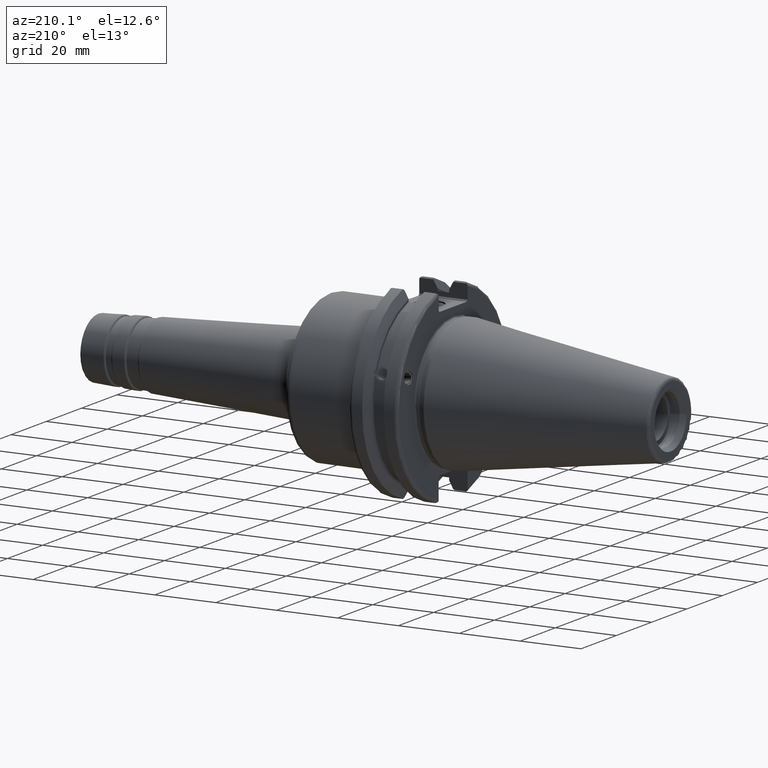
[diagram: clean part render]
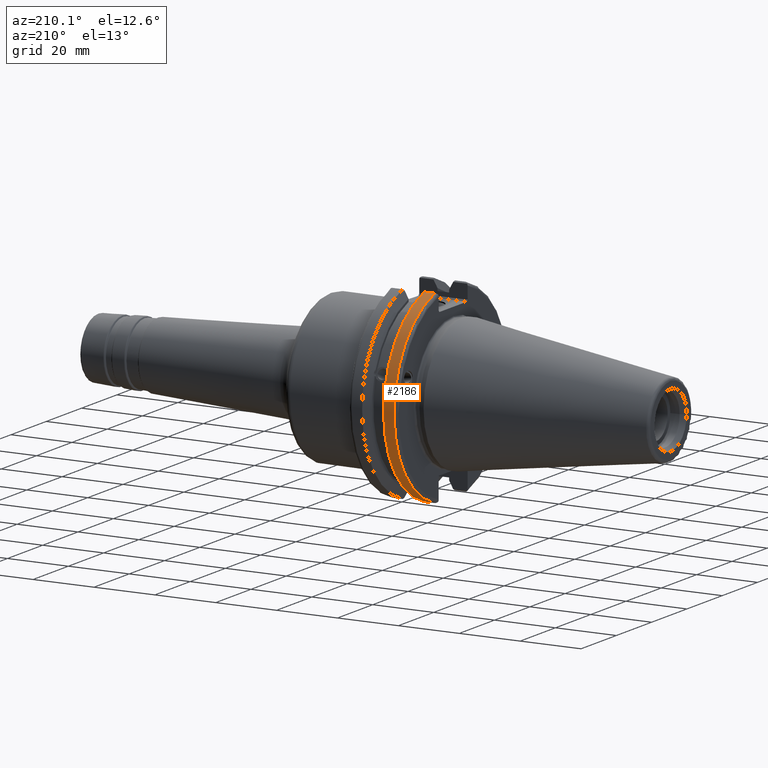
[diagram: same view with one face highlighted and labeled with its STEP entity id]
A machine part, auxiliary view. The second image highlights one B-rep face of the part: STEP entity #2186.
In plain terms, the highlighted cylindrical surface (partial cylindrical patch) has radius 31.75 mm, axis along (1, 0, 0).
Its self-contained STEP definition (entity closure, byte-faithful):
#178=CYLINDRICAL_SURFACE('',#2494,31.75);
#275=FACE_OUTER_BOUND('',#396,.T.);
#396=EDGE_LOOP('',(#1987,#1988,#1989,#1990));
#496=LINE('',#4175,#597);
#509=LINE('',#4232,#610);
#597=VECTOR('',#3104,10.);
#610=VECTOR('',#3165,10.);
#740=CIRCLE('',#2418,31.75);
#766=CIRCLE('',#2468,31.75);
#955=VERTEX_POINT('',#3894);
#956=VERTEX_POINT('',#3898);
#1011=VERTEX_POINT('',#4149);
#1012=VERTEX_POINT('',#4158);
#1251=EDGE_CURVE('',#955,#956,#740,.T.);
#1332=EDGE_CURVE('',#1011,#1012,#766,.T.);
#1335=EDGE_CURVE('',#1012,#955,#496,.T.);
#1361=EDGE_CURVE('',#956,#1011,#509,.T.);
#1987=ORIENTED_EDGE('',*,*,#1332,.F.);
#1988=ORIENTED_EDGE('',*,*,#1361,.F.);
#1989=ORIENTED_EDGE('',*,*,#1251,.F.);
#1990=ORIENTED_EDGE('',*,*,#1335,.F.);
#2186=ADVANCED_FACE('',(#275),#178,.T.);
#2418=AXIS2_PLACEMENT_3D('',#3899,#2968,#2969);
#2468=AXIS2_PLACEMENT_3D('',#4159,#3100,#3101);
#2494=AXIS2_PLACEMENT_3D('',#4233,#3166,#3167);
#2968=DIRECTION('center_axis',(1.,0.,0.));
#2969=DIRECTION('ref_axis',(0.,0.,-1.));
#3100=DIRECTION('center_axis',(-1.,0.,0.));
#3101=DIRECTION('ref_axis',(0.,1.,1.60812264967664E-16));
#3104=DIRECTION('',(1.,0.,0.));
#3165=DIRECTION('',(-1.,0.,0.));
#3166=DIRECTION('center_axis',(1.,0.,0.));
#3167=DIRECTION('ref_axis',(0.,1.,0.));
#3894=CARTESIAN_POINT('',(7.60793323092436,8.67204822802685,-30.5427254764662));
#3898=CARTESIAN_POINT('',(7.60793323092436,8.67204822802685,30.5427254764662));
#3899=CARTESIAN_POINT('Origin',(7.60793323092436,0.,0.));
#4149=CARTESIAN_POINT('',(4.175,8.67204822802685,30.5427254764662));
#4158=CARTESIAN_POINT('',(4.175,8.67204822802685,-30.5427254764662));
#4159=CARTESIAN_POINT('Origin',(4.175,0.,0.));
#4175=CARTESIAN_POINT('',(5.39146661546218,8.67204822802685,-30.5427254764662));
#4232=CARTESIAN_POINT('',(5.39146661546218,8.67204822802685,30.5427254764662));
#4233=CARTESIAN_POINT('Origin',(5.39146661546218,0.,0.));